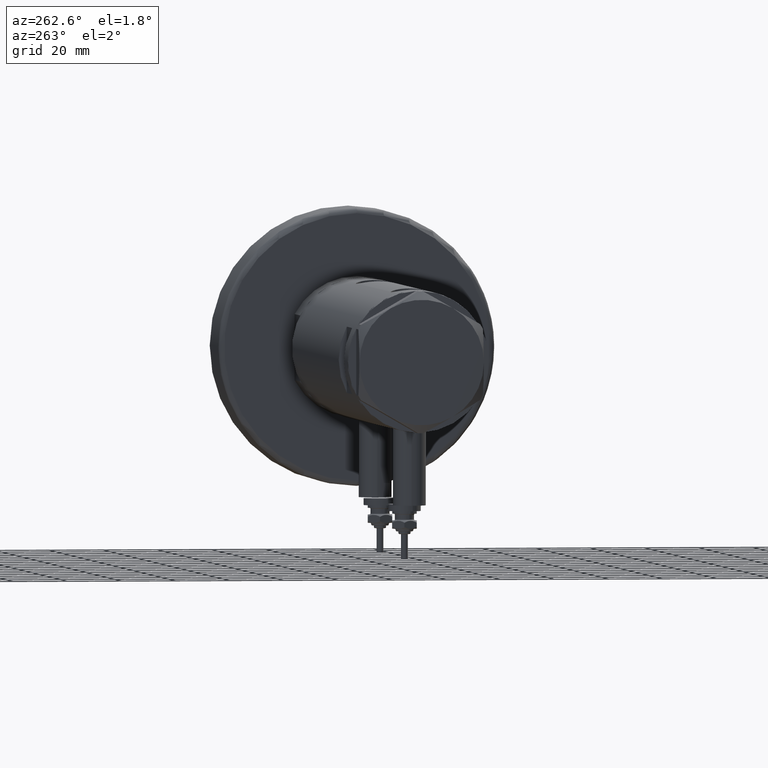
[diagram: clean part render]
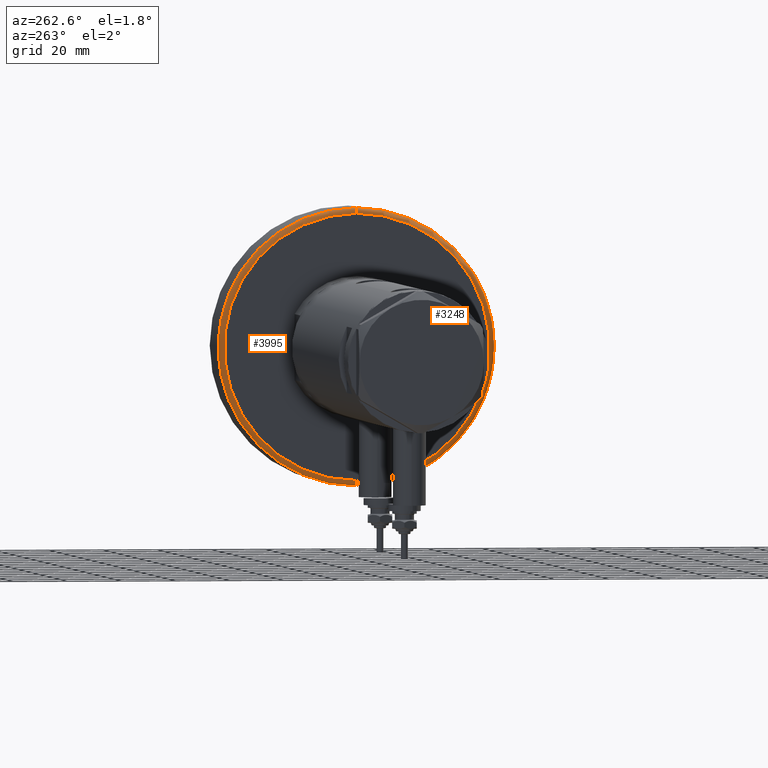
[diagram: same view with one multi-face feature highlighted, each face labeled with its STEP entity id]
A machine part, auxiliary view. The highlighted faces form ONE feature: a constant-radius fillet chain: 2 tangent blend faces with common blend radius 2 mm. The faces share edges in the B-rep.
Their STEP definitions:
[1] entity #3995 (Torus):
#192 = DIRECTION ( 'NONE',  ( -1.000000000000000000, 1.224646799147353454E-16, 0.000000000000000000 ) ) ;
#213 = VERTEX_POINT ( 'NONE', #5723 ) ;
#419 = CARTESIAN_POINT ( 'NONE',  ( -48.99999999999998579, 6.123233995736764507E-15, 0.000000000000000000 ) ) ;
#897 = CARTESIAN_POINT ( 'NONE',  ( 0.000000000000000000, 0.000000000000000000, 1.999999999999998224 ) ) ;
#958 = VERTEX_POINT ( 'NONE', #5804 ) ;
#1010 = CIRCLE ( 'NONE', #6536, 2.000000000000000000 ) ;
#1092 = VERTEX_POINT ( 'NONE', #1364 ) ;
#1190 = ORIENTED_EDGE ( 'NONE', *, *, #6604, .F. ) ;
#1364 = CARTESIAN_POINT ( 'NONE',  ( -50.99999999999999289, 0.000000000000000000, 1.999999999999998224 ) ) ;
#1380 = DIRECTION ( 'NONE',  ( -0.000000000000000000, -0.000000000000000000, -1.000000000000000000 ) ) ;
#1458 = CARTESIAN_POINT ( 'NONE',  ( 48.99999999999998579, 0.000000000000000000, 1.999999999999998224 ) ) ;
#1598 = ORIENTED_EDGE ( 'NONE', *, *, #6577, .T. ) ;
#1897 = EDGE_CURVE ( 'NONE', #5561, #213, #2763, .T. ) ;
#2555 = AXIS2_PLACEMENT_3D ( 'NONE', #3278, #2775, #192 ) ;
#2763 = CIRCLE ( 'NONE', #3623, 48.99999999999998579 ) ;
#2775 = DIRECTION ( 'NONE',  ( 1.224646799147353207E-16, 1.000000000000000000, -0.000000000000000000 ) ) ;
#2932 = ORIENTED_EDGE ( 'NONE', *, *, #5113, .F. ) ;
#2971 = DIRECTION ( 'NONE',  ( 0.000000000000000000, 0.000000000000000000, 1.000000000000000000 ) ) ;
#3099 = CIRCLE ( 'NONE', #6455, 50.99999999999999289 ) ;
#3275 = DIRECTION ( 'NONE',  ( 1.000000000000000000, 0.000000000000000000, 0.000000000000000000 ) ) ;
#3278 = CARTESIAN_POINT ( 'NONE',  ( -48.99999999999998579, 6.000769315822029359E-15, 1.999999999999998224 ) ) ;
#3312 = DIRECTION ( 'NONE',  ( 0.000000000000000000, 0.000000000000000000, 1.000000000000000000 ) ) ;
#3442 = DIRECTION ( 'NONE',  ( 1.000000000000000000, 0.000000000000000000, 0.000000000000000000 ) ) ;
#3514 = DIRECTION ( 'NONE',  ( 0.000000000000000000, -1.000000000000000000, 0.000000000000000000 ) ) ;
#3623 = AXIS2_PLACEMENT_3D ( 'NONE', #6019, #1380, #3442 ) ;
#3709 = AXIS2_PLACEMENT_3D ( 'NONE', #4830, #3312, #3275 ) ;
#3909 = DIRECTION ( 'NONE',  ( 1.000000000000000000, 0.000000000000000000, 0.000000000000000000 ) ) ;
#3995 = ADVANCED_FACE ( 'NONE', ( #6392 ), #6089, .T. ) ;
#4148 = ORIENTED_EDGE ( 'NONE', *, *, #1897, .F. ) ;
#4830 = CARTESIAN_POINT ( 'NONE',  ( 0.000000000000000000, 0.000000000000000000, 1.999999999999998224 ) ) ;
#4946 = DIRECTION ( 'NONE',  ( 0.000000000000000000, 0.000000000000000000, -1.000000000000000000 ) ) ;
#5113 = EDGE_CURVE ( 'NONE', #213, #958, #1010, .T. ) ;
#5561 = VERTEX_POINT ( 'NONE', #419 ) ;
#5646 = EDGE_LOOP ( 'NONE', ( #4148, #1598, #1190, #2932 ) ) ;
#5723 = CARTESIAN_POINT ( 'NONE',  ( 48.99999999999998579, 0.000000000000000000, 0.000000000000000000 ) ) ;
#5803 = CIRCLE ( 'NONE', #2555, 2.000000000000001776 ) ;
#5804 = CARTESIAN_POINT ( 'NONE',  ( 50.99999999999999289, 6.245698675651499656E-15, 1.999999999999998224 ) ) ;
#6019 = CARTESIAN_POINT ( 'NONE',  ( 0.000000000000000000, 0.000000000000000000, 0.000000000000000000 ) ) ;
#6089 = TOROIDAL_SURFACE ( 'NONE', #3709, 48.99999999999998579, 2.000000000000000000 ) ;
#6392 = FACE_OUTER_BOUND ( 'NONE', #5646, .T. ) ;
#6455 = AXIS2_PLACEMENT_3D ( 'NONE', #897, #2971, #3909 ) ;
#6536 = AXIS2_PLACEMENT_3D ( 'NONE', #1458, #3514, #4946 ) ;
#6577 = EDGE_CURVE ( 'NONE', #5561, #1092, #5803, .T. ) ;
#6604 = EDGE_CURVE ( 'NONE', #958, #1092, #3099, .T. ) ;
[2] entity #3248 (Torus):
#116 = ORIENTED_EDGE ( 'NONE', *, *, #6577, .F. ) ;
#176 = DIRECTION ( 'NONE',  ( 1.000000000000000000, 0.000000000000000000, 0.000000000000000000 ) ) ;
#192 = DIRECTION ( 'NONE',  ( -1.000000000000000000, 1.224646799147353454E-16, 0.000000000000000000 ) ) ;
#213 = VERTEX_POINT ( 'NONE', #5723 ) ;
#344 = CIRCLE ( 'NONE', #4440, 48.99999999999998579 ) ;
#419 = CARTESIAN_POINT ( 'NONE',  ( -48.99999999999998579, 6.123233995736764507E-15, 0.000000000000000000 ) ) ;
#958 = VERTEX_POINT ( 'NONE', #5804 ) ;
#1010 = CIRCLE ( 'NONE', #6536, 2.000000000000000000 ) ;
#1092 = VERTEX_POINT ( 'NONE', #1364 ) ;
#1253 = CARTESIAN_POINT ( 'NONE',  ( 0.000000000000000000, 0.000000000000000000, 0.000000000000000000 ) ) ;
#1364 = CARTESIAN_POINT ( 'NONE',  ( -50.99999999999999289, 0.000000000000000000, 1.999999999999998224 ) ) ;
#1458 = CARTESIAN_POINT ( 'NONE',  ( 48.99999999999998579, 0.000000000000000000, 1.999999999999998224 ) ) ;
#1557 = AXIS2_PLACEMENT_3D ( 'NONE', #3895, #3399, #5967 ) ;
#1663 = ORIENTED_EDGE ( 'NONE', *, *, #2520, .F. ) ;
#1680 = CARTESIAN_POINT ( 'NONE',  ( 0.000000000000000000, 0.000000000000000000, 1.999999999999998224 ) ) ;
#1732 = DIRECTION ( 'NONE',  ( -0.000000000000000000, -0.000000000000000000, -1.000000000000000000 ) ) ;
#2520 = EDGE_CURVE ( 'NONE', #213, #5561, #344, .T. ) ;
#2555 = AXIS2_PLACEMENT_3D ( 'NONE', #3278, #2775, #192 ) ;
#2775 = DIRECTION ( 'NONE',  ( 1.224646799147353207E-16, 1.000000000000000000, -0.000000000000000000 ) ) ;
#3248 = ADVANCED_FACE ( 'NONE', ( #5391 ), #4671, .T. ) ;
#3278 = CARTESIAN_POINT ( 'NONE',  ( -48.99999999999998579, 6.000769315822029359E-15, 1.999999999999998224 ) ) ;
#3329 = ORIENTED_EDGE ( 'NONE', *, *, #4529, .F. ) ;
#3379 = AXIS2_PLACEMENT_3D ( 'NONE', #1680, #5357, #176 ) ;
#3399 = DIRECTION ( 'NONE',  ( 0.000000000000000000, 0.000000000000000000, 1.000000000000000000 ) ) ;
#3514 = DIRECTION ( 'NONE',  ( 0.000000000000000000, -1.000000000000000000, 0.000000000000000000 ) ) ;
#3895 = CARTESIAN_POINT ( 'NONE',  ( 0.000000000000000000, 0.000000000000000000, 1.999999999999998224 ) ) ;
#3964 = ORIENTED_EDGE ( 'NONE', *, *, #5113, .T. ) ;
#4440 = AXIS2_PLACEMENT_3D ( 'NONE', #1253, #1732, #5891 ) ;
#4529 = EDGE_CURVE ( 'NONE', #1092, #958, #4787, .T. ) ;
#4671 = TOROIDAL_SURFACE ( 'NONE', #3379, 48.99999999999998579, 2.000000000000000000 ) ;
#4787 = CIRCLE ( 'NONE', #1557, 50.99999999999999289 ) ;
#4946 = DIRECTION ( 'NONE',  ( 0.000000000000000000, 0.000000000000000000, -1.000000000000000000 ) ) ;
#5113 = EDGE_CURVE ( 'NONE', #213, #958, #1010, .T. ) ;
#5357 = DIRECTION ( 'NONE',  ( 0.000000000000000000, 0.000000000000000000, 1.000000000000000000 ) ) ;
#5391 = FACE_OUTER_BOUND ( 'NONE', #5810, .T. ) ;
#5561 = VERTEX_POINT ( 'NONE', #419 ) ;
#5723 = CARTESIAN_POINT ( 'NONE',  ( 48.99999999999998579, 0.000000000000000000, 0.000000000000000000 ) ) ;
#5803 = CIRCLE ( 'NONE', #2555, 2.000000000000001776 ) ;
#5804 = CARTESIAN_POINT ( 'NONE',  ( 50.99999999999999289, 6.245698675651499656E-15, 1.999999999999998224 ) ) ;
#5810 = EDGE_LOOP ( 'NONE', ( #116, #1663, #3964, #3329 ) ) ;
#5891 = DIRECTION ( 'NONE',  ( 1.000000000000000000, 0.000000000000000000, 0.000000000000000000 ) ) ;
#5967 = DIRECTION ( 'NONE',  ( 1.000000000000000000, 0.000000000000000000, 0.000000000000000000 ) ) ;
#6536 = AXIS2_PLACEMENT_3D ( 'NONE', #1458, #3514, #4946 ) ;
#6577 = EDGE_CURVE ( 'NONE', #5561, #1092, #5803, .T. ) ;